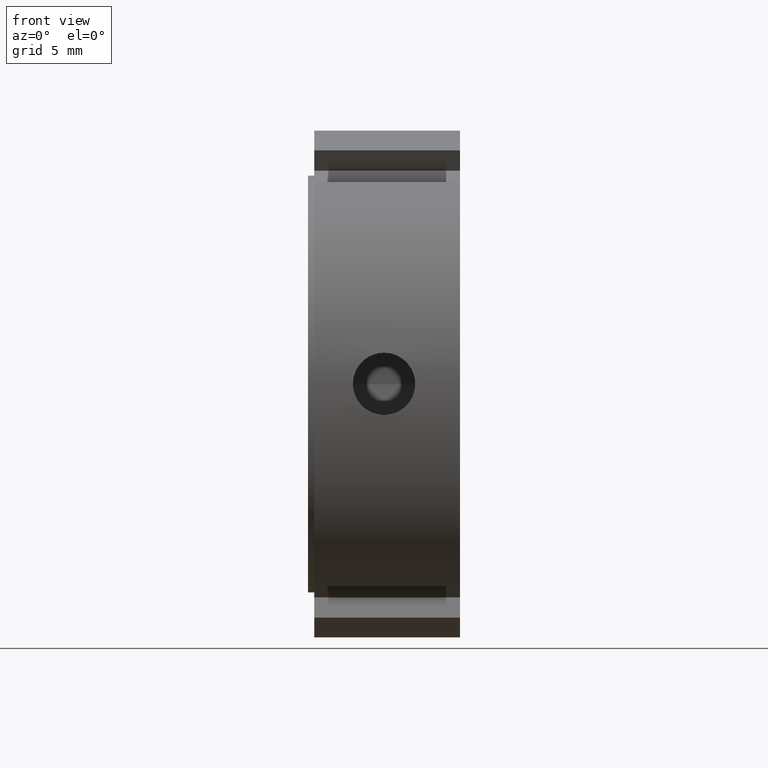
[diagram: clean part render]
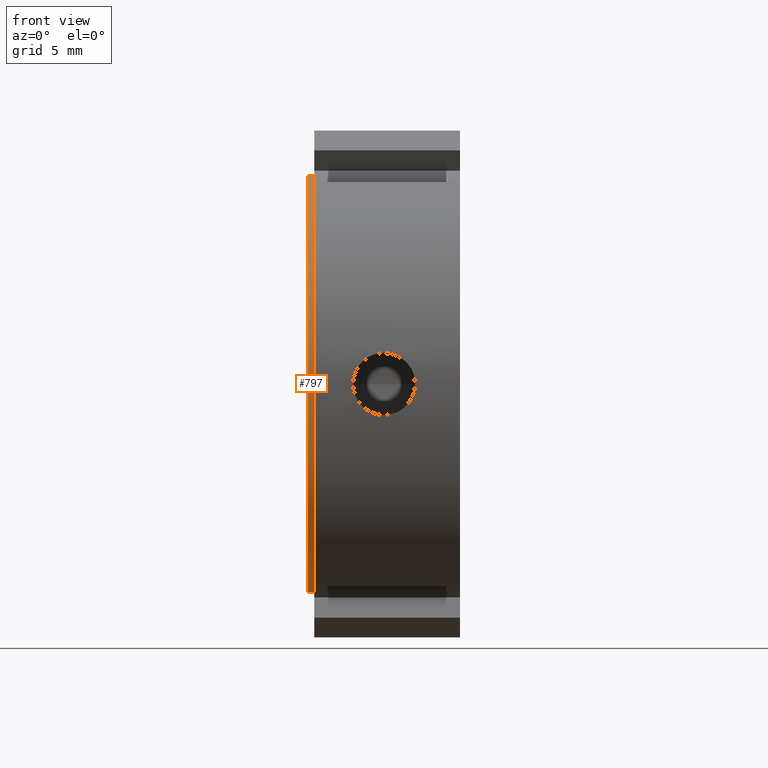
[diagram: same view with one face highlighted and labeled with its STEP entity id]
A machine part, front view. The second image highlights one B-rep face of the part: STEP entity #797.
In plain terms, the highlighted cylindrical surface (bore or boss wall) has radius 16.5 mm, axis along (1, 0, 0).
Its self-contained STEP definition (entity closure, byte-faithful):
#755=CARTESIAN_POINT('',(-4.440892E-015,16.500000000000000,0.0));
#756=VERTEX_POINT('',#755);
#757=CARTESIAN_POINT('',(-4.440892E-015,0.0,0.0));
#758=DIRECTION('',(1.0,0.0,0.0));
#759=DIRECTION('',(0.0,1.0,0.0));
#760=AXIS2_PLACEMENT_3D('',#757,#758,#759);
#761=CIRCLE('',#760,16.500000000000000);
#762=EDGE_CURVE('',#756,#756,#761,.T.);
#778=CARTESIAN_POINT('',(0.249999999999996,0.0,0.0));
#779=DIRECTION('',(1.0,0.0,0.0));
#780=DIRECTION('',(0.0,1.0,0.0));
#781=AXIS2_PLACEMENT_3D('',#778,#779,#780);
#782=CYLINDRICAL_SURFACE('',#781,16.500000000000000);
#783=CARTESIAN_POINT('',(0.499999999999996,16.500000000000000,0.0));
#784=VERTEX_POINT('',#783);
#785=CARTESIAN_POINT('',(0.499999999999996,0.0,0.0));
#786=DIRECTION('',(1.0,0.0,0.0));
#787=DIRECTION('',(0.0,1.0,0.0));
#788=AXIS2_PLACEMENT_3D('',#785,#786,#787);
#789=CIRCLE('',#788,16.500000000000000);
#790=EDGE_CURVE('',#784,#784,#789,.T.);
#791=ORIENTED_EDGE('',*,*,#790,.F.);
#792=EDGE_LOOP('',(#791));
#793=FACE_OUTER_BOUND('',#792,.T.);
#794=ORIENTED_EDGE('',*,*,#762,.T.);
#795=EDGE_LOOP('',(#794));
#796=FACE_BOUND('',#795,.T.);
#797=ADVANCED_FACE('',(#793,#796),#782,.T.);